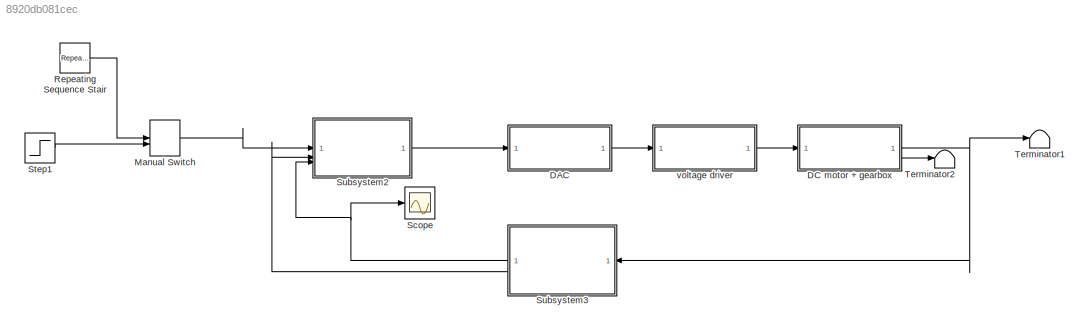
MODEL slx_8920db081cec
KIND model
CONFIG AbsTol = auto
CONFIG EnableMultiTasking = off
CONFIG FixedStep = auto
CONFIG MaxStep = auto
CONFIG MinStep = auto
CONFIG RelTol = 1e-3
CONFIG SampleTimeConstraint = Unconstrained
CONFIG SolverName = VariableStepAuto
CONFIG StartTime = 0.0
CONFIG StopTime = 25
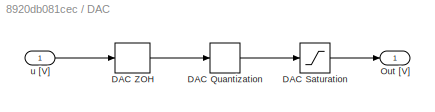
BLOCK [SubSystem] DAC
BLOCK [Quantizer] DAC/DAC Quantization
  QuantizationInterval = 20/(2^16 - 1)
BLOCK [Saturate] DAC/DAC Saturation
  LowerLimit = -10
  UpperLimit = 10
BLOCK [ZeroOrderHold] DAC/DAC ZOH
  SampleTime = 0.001
BLOCK [Outport] DAC/Out [V]
BLOCK [Inport] DAC/u [V]
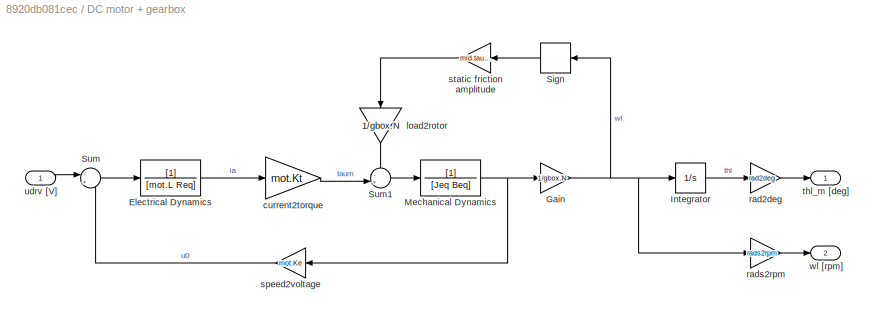
BLOCK [SubSystem] DC motor + gearbox
BLOCK [TransferFcn] DC motor + gearbox/Electrical Dynamics
  Denominator = [mot.L Req]
BLOCK [Gain] DC motor + gearbox/Gain
  Gain = 1/gbox.N
BLOCK [Integrator] DC motor + gearbox/Integrator
BLOCK [TransferFcn] DC motor + gearbox/Mechanical Dynamics
  Denominator = [Jeq Beq]
BLOCK [Signum] DC motor + gearbox/Sign
  ZeroCross = off
BLOCK [Sum] DC motor + gearbox/Sum
  Inputs = |+-
BLOCK [Sum] DC motor + gearbox/Sum1
  Inputs = -+|
BLOCK [Gain] DC motor + gearbox/current2torque
  Gain = mot.Kt
BLOCK [Gain] DC motor + gearbox/load2rotor
  Gain = 1/gbox.N
  NameLocation = right
BLOCK [Gain] DC motor + gearbox/rad2deg
  Gain = rad2deg
BLOCK [Gain] DC motor + gearbox/rads2rpm
  Gain = rads2rpm
BLOCK [Gain] DC motor + gearbox/speed2voltage
  Gain = mot.Ke
BLOCK [Gain] DC motor + gearbox/static friction amplitude
  Gain = mld.tausf
BLOCK [Outport] DC motor + gearbox/thl_m [deg]
BLOCK [Inport] DC motor + gearbox/udrv [V]
BLOCK [Outport] DC motor + gearbox/wl [rpm]
  Port = 2
BLOCK [ManualSwitch] Manual Switch
BLOCK [Reference] Repeating Sequence Stair  REF=simulink/Sources/Repeating
Sequence
Stair
  SourceBlock = simulink/Sources/Repeating\nSequence\nStair
  SourceType = Repeating Sequence Stair
BLOCK [Scope] Scope
  Floating = off
  NumInputPorts = 1
  ScopeSpecificationString = Simulink.scopes.TimeScopeBlockCfg('CurrentConfiguration', extmgr.ConfigurationSet(extmgr.Configuration('Core','General UI',true),extmgr.Configuration('Core','Source UI',true),extmgr.Configuration('Sources','WiredSimulink',true),extmgr.Configuration('Visuals','Time Domain',true,'SerializedDisplays',{struct('MinYLimReal','-45.15952','MaxYLimReal','406.41514','YLabelReal','','MinYLimMag','0.00000','M...<+1367ch>
BLOCK [Step] Step1
  After = 70
  SampleTime = 0
  Time = 0
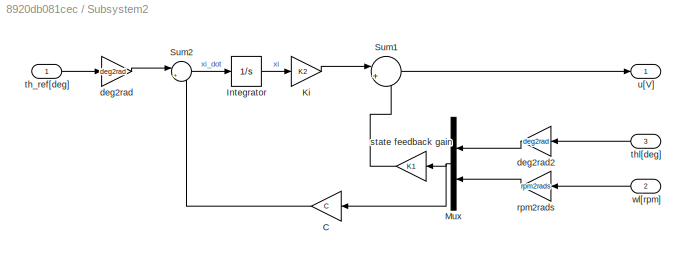
BLOCK [SubSystem] Subsystem2
BLOCK [Gain] Subsystem2/C
  Gain = C
  Multiplication = Matrix(K*u)
  NameLocation = top
BLOCK [Integrator] Subsystem2/Integrator
BLOCK [Gain] Subsystem2/Ki
  Gain = K2
BLOCK [Mux] Subsystem2/Mux
  DisplayOption = bar
  Inputs = 2
  NameLocation = top
BLOCK [Sum] Subsystem2/Sum1
  Inputs = |+-
BLOCK [Sum] Subsystem2/Sum2
  Inputs = |+-
BLOCK [Gain] Subsystem2/deg2rad
  Gain = deg2rad
BLOCK [Gain] Subsystem2/deg2rad2
  Gain = deg2rad
BLOCK [Gain] Subsystem2/rpm2rads
  Gain = rpm2rads
BLOCK [Gain] Subsystem2/state feedback gain
  Gain = K1
  Multiplication = Matrix(K*u)
  NameLocation = top
BLOCK [Inport] Subsystem2/th_ref[deg]
BLOCK [Inport] Subsystem2/thl[deg]
  Port = 3
BLOCK [Outport] Subsystem2/u[V]
BLOCK [Inport] Subsystem2/wl[rpm]
  Port = 2
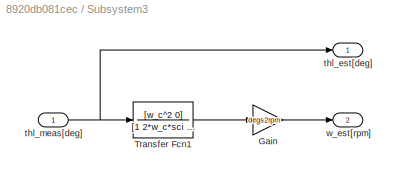
BLOCK [SubSystem] Subsystem3
  NameLocation = top
BLOCK [Gain] Subsystem3/Gain
  Gain = degs2rpm
BLOCK [TransferFcn] Subsystem3/Transfer Fcn1
  Denominator = [1 2*w_c*sci w_c^2]
  Numerator = [w_c^2 0]
BLOCK [Outport] Subsystem3/thl_est[deg]
BLOCK [Inport] Subsystem3/thl_meas[deg]
BLOCK [Outport] Subsystem3/w_est[rpm]
  Port = 2
BLOCK [Terminator] Terminator1
BLOCK [Terminator] Terminator2
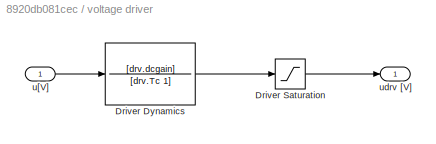
BLOCK [SubSystem] voltage driver
BLOCK [TransferFcn] voltage driver/Driver Dynamics
  Denominator = [drv.Tc 1]
  Numerator = [drv.dcgain]
BLOCK [Saturate] voltage driver/Driver Saturation
  LowerLimit = -12
  UpperLimit = 12
BLOCK [Inport] voltage driver/u[V]
BLOCK [Outport] voltage driver/udrv [V]
LINE DAC/DAC Quantization:1 -> DAC/DAC Saturation:1
LINE DAC/DAC Saturation:1 -> DAC/Out [V]:1
LINE DAC/DAC ZOH:1 -> DAC/DAC Quantization:1
LINE DAC/u [V]:1 -> DAC/DAC ZOH:1
LINE DAC:1 -> voltage driver:1
LINE DC motor + gearbox/Electrical Dynamics:1 -> DC motor + gearbox/current2torque:1
NET DC motor + gearbox/Gain:1 -> DC motor + gearbox/Integrator:1, DC motor + gearbox/Sign:1, DC motor + gearbox/rads2rpm:1
LINE DC motor + gearbox/Integrator:1 -> DC motor + gearbox/rad2deg:1
NET DC motor + gearbox/Mechanical Dynamics:1 -> DC motor + gearbox/Gain:1, DC motor + gearbox/speed2voltage:1
LINE DC motor + gearbox/Sign:1 -> DC motor + gearbox/static friction amplitude:1
LINE DC motor + gearbox/Sum1:1 -> DC motor + gearbox/Mechanical Dynamics:1
LINE DC motor + gearbox/Sum:1 -> DC motor + gearbox/Electrical Dynamics:1
LINE DC motor + gearbox/current2torque:1 -> DC motor + gearbox/Sum1:2
LINE DC motor + gearbox/load2rotor:1 -> DC motor + gearbox/Sum1:1
LINE DC motor + gearbox/rad2deg:1 -> DC motor + gearbox/thl_m [deg]:1
LINE DC motor + gearbox/rads2rpm:1 -> DC motor + gearbox/wl [rpm]:1
LINE DC motor + gearbox/speed2voltage:1 -> DC motor + gearbox/Sum:2
LINE DC motor + gearbox/static friction amplitude:1 -> DC motor + gearbox/load2rotor:1
LINE DC motor + gearbox/udrv [V]:1 -> DC motor + gearbox/Sum:1
NET DC motor + gearbox:1 -> Subsystem3:1, Terminator1:1
LINE DC motor + gearbox:2 -> Terminator2:1
LINE Manual Switch:1 -> Subsystem2:1
LINE Repeating Sequence Stair:1 -> Manual Switch:1
LINE Step1:1 -> Manual Switch:2
LINE Subsystem2/C:1 -> Subsystem2/Sum2:2
LINE Subsystem2/Integrator:1 -> Subsystem2/Ki:1
LINE Subsystem2/Ki:1 -> Subsystem2/Sum1:1
NET Subsystem2/Mux:1 -> Subsystem2/C:1, Subsystem2/state feedback gain:1
LINE Subsystem2/Sum1:1 -> Subsystem2/u[V]:1
LINE Subsystem2/Sum2:1 -> Subsystem2/Integrator:1
LINE Subsystem2/deg2rad2:1 -> Subsystem2/Mux:1
LINE Subsystem2/deg2rad:1 -> Subsystem2/Sum2:1
LINE Subsystem2/rpm2rads:1 -> Subsystem2/Mux:2
LINE Subsystem2/state feedback gain:1 -> Subsystem2/Sum1:2
LINE Subsystem2/th_ref[deg]:1 -> Subsystem2/deg2rad:1
LINE Subsystem2/thl[deg]:1 -> Subsystem2/deg2rad2:1
LINE Subsystem2/wl[rpm]:1 -> Subsystem2/rpm2rads:1
LINE Subsystem2:1 -> DAC:1
LINE Subsystem3/Gain:1 -> Subsystem3/w_est[rpm]:1
LINE Subsystem3/Transfer Fcn1:1 -> Subsystem3/Gain:1
NET Subsystem3/thl_meas[deg]:1 -> Subsystem3/Transfer Fcn1:1, Subsystem3/thl_est[deg]:1
NET Subsystem3:1 -> Scope:1, Subsystem2:3
LINE Subsystem3:2 -> Subsystem2:2
LINE voltage driver/Driver Dynamics:1 -> voltage driver/Driver Saturation:1
LINE voltage driver/Driver Saturation:1 -> voltage driver/udrv [V]:1
LINE voltage driver/u[V]:1 -> voltage driver/Driver Dynamics:1
LINE voltage driver:1 -> DC motor + gearbox:1
note: NET lines group one-source signal fan-out (src -> all destinations, sorted); 1:1 wires keep LINE
